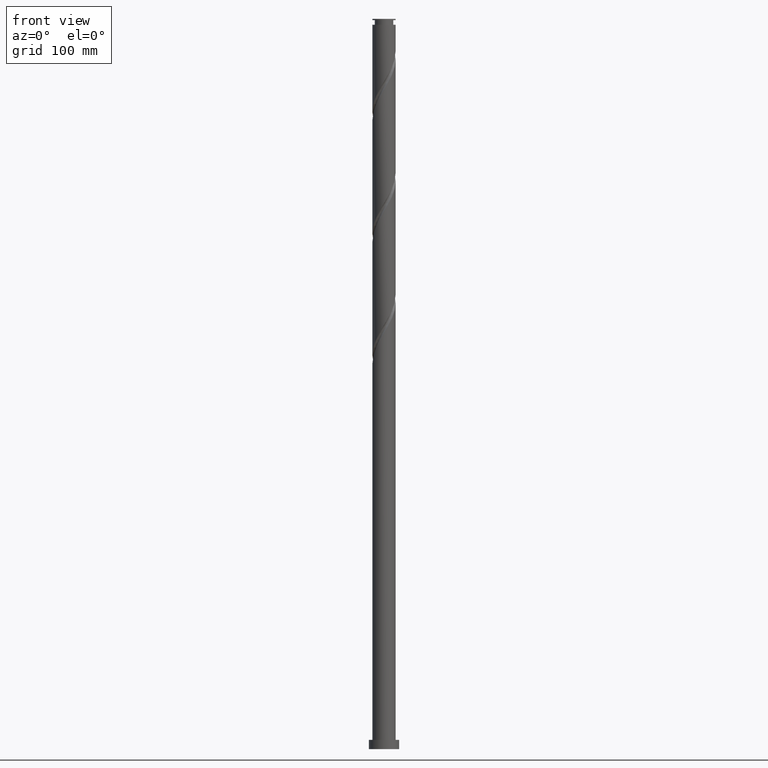
[diagram: clean part render]
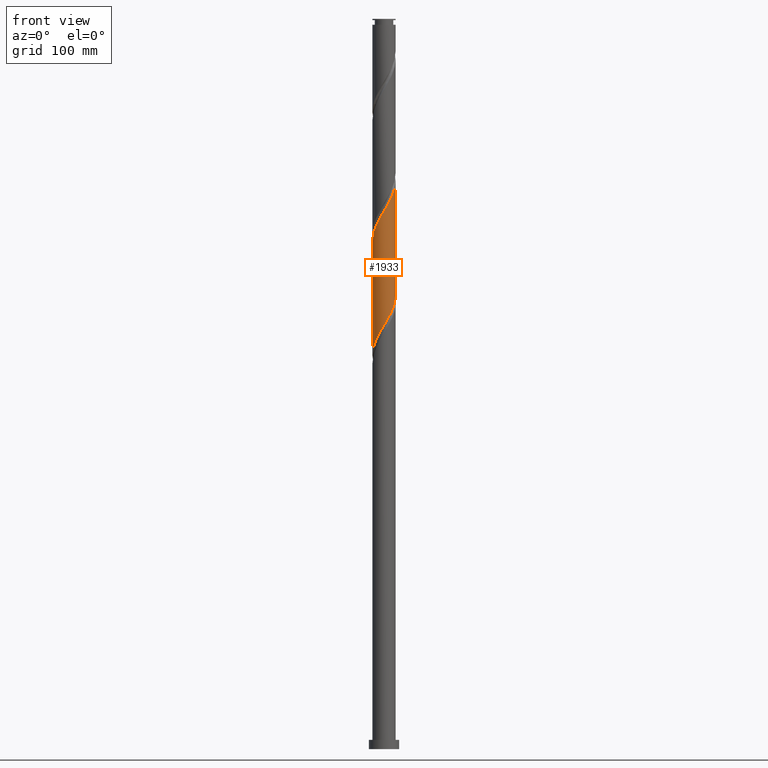
[diagram: same view with one face highlighted and labeled with its STEP entity id]
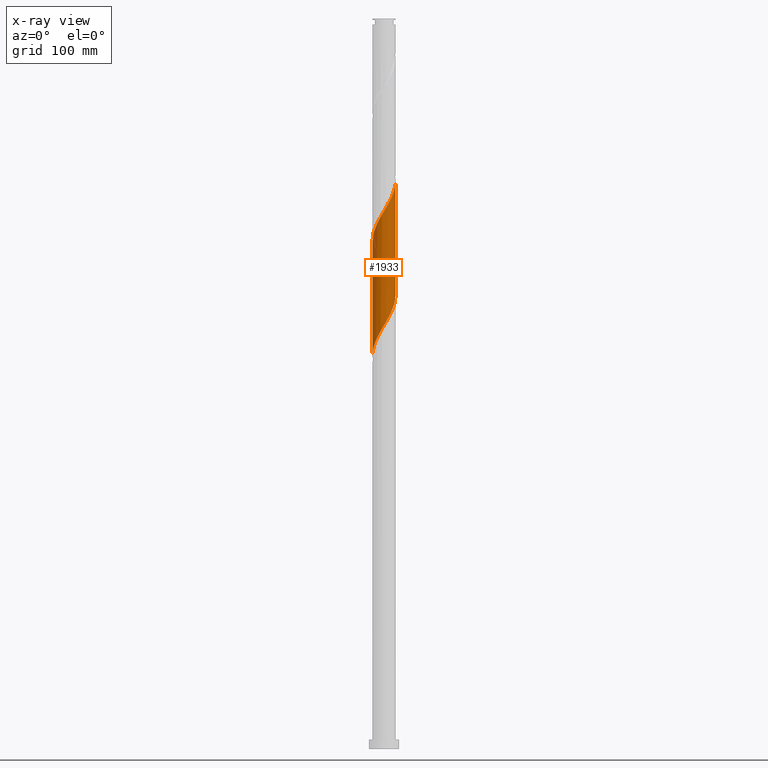
[diagram: x-ray of the same camera — body ghosted, the highlighted face saturated]
A machine part, front view. The second image highlights one B-rep face of the part: STEP entity #1933.
The next image is the same camera in x-ray: the body ghosted, the highlighted face saturated — about 0% of this face is hidden behind the body in this view.
In plain terms, the highlighted cylindrical surface (edge-blend (fillet) strip) has radius 10 mm, axis along (-0, -0, -1).
Its self-contained STEP definition (entity closure, byte-faithful):
#3 = CARTESIAN_POINT ( 'NONE',  ( 9.970473777339156740, -0.7678884394185103712, 489.0346157676426628 ) ) ;
#14 = CARTESIAN_POINT ( 'NONE',  ( 1.989974874213248146, -9.800000000000014921, 467.4169687088191836 ) ) ;
#51 = CARTESIAN_POINT ( 'NONE',  ( 9.659608383748059524, -2.586883428495470927, 485.9463804735250392 ) ) ;
#98 = CARTESIAN_POINT ( 'NONE',  ( 10.00000000000000178, -7.319984282701970376E-15, 392.0151774835132414 ) ) ;
#110 = CARTESIAN_POINT ( 'NONE',  ( -9.659608383748043536, -2.586883428495467374, 343.8875569441133280 ) ) ;
#111 = ORIENTED_EDGE ( 'NONE', *, *, #1830, .F. ) ;
#121 = CARTESIAN_POINT ( 'NONE',  ( 4.336283023954736748, -9.058438312957086680, 373.2257922382310085 ) ) ;
#130 = CARTESIAN_POINT ( 'NONE',  ( 9.841984169373612090, -1.998500123414085561, 388.6669687088191836 ) ) ;
#140 = CARTESIAN_POINT ( 'NONE',  ( 3.467124458470600246, -9.379714707253892669, 371.6816745911720545 ) ) ;
#144 = CARTESIAN_POINT ( 'NONE',  ( -7.885592126811187264, -6.149588344724690181, 448.8875569441132711 ) ) ;
#219 = ORIENTED_EDGE ( 'NONE', *, *, #1276, .F. ) ;
#276 = CARTESIAN_POINT ( 'NONE',  ( -7.525958078366985937, -6.649707522601991272, 351.6081451794073587 ) ) ;
#279 = VECTOR ( 'NONE', #2088, 1000.000000000000000 ) ;
#307 = CARTESIAN_POINT ( 'NONE',  ( 8.455435405720850284, -5.418880625476916180, 382.4904981205837657 ) ) ;
#318 = CARTESIAN_POINT ( 'NONE',  ( 5.131608130647609123, -8.582924792486027243, 374.7699098852897919 ) ) ;
#322 = CARTESIAN_POINT ( 'NONE',  ( -6.621341042621000206, -7.493853667993722212, 451.9757922382308948 ) ) ;
#380 = CARTESIAN_POINT ( 'NONE',  ( 10.00000000000001599, 6.752312032206668672E-15, 490.3187599341250689 ) ) ;
#393 = CARTESIAN_POINT ( 'NONE',  ( 0.000000000000000000, 0.000000000000000000, 630.0000000000000000 ) ) ;
#439 = CARTESIAN_POINT ( 'NONE',  ( 9.574583210674491696, -2.885715914962902140, 387.1228510617603433 ) ) ;
#449 = CARTESIAN_POINT ( 'NONE',  ( -9.419898332860572765, -3.481977962603644450, 345.4316745911721114 ) ) ;
#451 = VERTEX_POINT ( 'NONE', #380 ) ;
#474 = CARTESIAN_POINT ( 'NONE',  ( -2.898078607385138561, -9.615601672225377428, 360.8728510617603433 ) ) ;
#477 = CARTESIAN_POINT ( 'NONE',  ( -8.881308828848125003, -4.595906165994323445, 445.7993216499955906 ) ) ;
#483 = CARTESIAN_POINT ( 'NONE',  ( -5.395764636050379259, -8.419366008931321588, 356.2404981205838226 ) ) ;
#498 = CARTESIAN_POINT ( 'NONE',  ( -1.684572021217823012, -9.857089687394065436, 461.2404981205837657 ) ) ;
#525 = CARTESIAN_POINT ( 'NONE',  ( 4.615595482616599909, -8.919357234371563692, 472.0493216499955338 ) ) ;
#548 = CARTESIAN_POINT ( 'NONE',  ( 8.619694891282842164, -5.153592447475790372, 481.3140275323484616 ) ) ;
#641 = CARTESIAN_POINT ( 'NONE',  ( -9.574583210674504130, -2.885715914962903472, 442.7110863558780238 ) ) ;
#647 = CARTESIAN_POINT ( 'NONE',  ( 1.684572021217821014, -9.857089687394049449, 368.5934392970544877 ) ) ;
#674 = CARTESIAN_POINT ( 'NONE',  ( -3.467124458470604687, -9.379714707253905104, 458.1522628264661421 ) ) ;
#701 = CARTESIAN_POINT ( 'NONE',  ( 10.00000000000001599, 6.752312032206668672E-15, 490.3187599341250120 ) ) ;
#719 = EDGE_LOOP ( 'NONE', ( #219, #111, #1870, #1924 ) ) ;
#740 = CARTESIAN_POINT ( 'NONE',  ( 10.00000000000001599, -0.3845118788768240314, 489.6753541820652913 ) ) ;
#761 = CARTESIAN_POINT ( 'NONE',  ( -10.00000000000000178, 0.000000000000000000, 630.0000000000000000 ) ) ;
#770 = CARTESIAN_POINT ( 'NONE',  ( 10.00000000000000178, -7.319984282701970376E-15, 392.0151774835132414 ) ) ;
#784 = CARTESIAN_POINT ( 'NONE',  ( -1.081871141041355289, -9.984398327774622217, 363.9610863558780238 ) ) ;
#790 = EDGE_CURVE ( 'NONE', #1205, #1393, #1921, .T. ) ;
#796 = CARTESIAN_POINT ( 'NONE',  ( -9.899318434635519637, -1.691788894387293407, 342.3434392970543740 ) ) ;
#807 = CARTESIAN_POINT ( 'NONE',  ( -9.970473777339142529, -0.7678884394185052642, 340.7993216499956475 ) ) ;
#818 = CARTESIAN_POINT ( 'NONE',  ( 7.885592126811174829, -6.149588344724679523, 380.9463804735250960 ) ) ;
#828 = CARTESIAN_POINT ( 'NONE',  ( 0.7711781494491763977, -10.01318827323739669, 367.0493216499955906 ) ) ;
#831 = CARTESIAN_POINT ( 'NONE',  ( -7.315748847901506480, -6.880296063972457077, 450.4316745911719977 ) ) ;
#853 = DIRECTION ( 'NONE',  ( -0.000000000000000000, -0.000000000000000000, -1.000000000000000000 ) ) ;
#957 = CARTESIAN_POINT ( 'NONE',  ( 9.941806644708183427, -1.077256069482188439, 390.2110863558779670 ) ) ;
#979 =( BOUNDED_CURVE ( )  B_SPLINE_CURVE ( 2, ( #1172, #1327, #1847, #1482, #641, #1506, #477, #1669, #144, #831, #322, #1679, #1518, #2183, #674, #1349, #498, #1186, #1413, #1740, #14, #1911, #1221, #525, #1531, #1886, #1360, #1729, #1702, #548, #1567, #1233, #51, #1402, #3, #740, #701 ),
 .UNSPECIFIED., .F., .T. ) 
 B_SPLINE_CURVE_WITH_KNOTS ( ( 3, 2, 2, 2, 2, 2, 2, 2, 2, 2, 2, 2, 2, 2, 2, 2, 2, 2, 3 ),
 ( 0.3045293573162903278, 0.3088235294117647189, 0.3161764705882352811, 0.3235294117647058432, 0.3308823529411765163, 0.3382352941176470784, 0.3455882352941176405, 0.3529411764705882026, 0.3602941176470588758, 0.3676470588235294379, 0.3750000000000000000, 0.3823529411764705621, 0.3897058823529411242, 0.3970588235294117974, 0.4044117647058823595, 0.4117647058823529216, 0.4191176470588234837, 0.4264705882352941568, 0.4295293573162904943 ),
 .UNSPECIFIED. ) 
 CURVE ( )  GEOMETRIC_REPRESENTATION_ITEM ( )  RATIONAL_B_SPLINE_CURVE ( ( 0.9072066346053018204, 0.9068261157890689095, 0.9090909090909401469, 0.9052128875409715114, 0.9090909090909401469, 0.9052128875409715114, 0.9090909090909401469, 0.9052128875409715114, 0.9090909090909401469, 0.9052128875409715114, 0.9090909090909401469, 0.9052128875409715114, 0.9090909090909401469, 0.9052128875409715114, 0.9090909090909401469, 0.9052128875409715114, 0.9090909090909401469, 0.9052128875409715114, 0.9090909090909401469, 0.9052128875409715114, 0.9090909090909401469, 0.9052128875409715114, 0.9090909090909401469, 0.9052128875409715114, 0.9090909090909401469, 0.9052128875409715114, 0.9090909090909401469, 0.9052128875409715114, 0.9090909090909401469, 0.9052128875409715114, 0.9090909090909401469, 0.9052128875409715114, 0.9090909090909401469, 0.9052128875409715114, 0.9090909090909401469, 0.9074776808428426378, 0.9072066346053018204 ) ) 
 REPRESENTATION_ITEM ( '' )  );
#989 = CARTESIAN_POINT ( 'NONE',  ( 5.926933237340483274, -8.107411272014974912, 376.3140275323486321 ) ) ;
#997 = CARTESIAN_POINT ( 'NONE',  ( -10.00000000000000178, -2.094411829458808635E-14, 339.5151774835132983 ) ) ;
#1045 = EDGE_CURVE ( 'NONE', #2069, #1393, #1882, .T. ) ;
#1051 = DIRECTION ( 'NONE',  ( -1.000000000000000000, 0.000000000000000000, 0.000000000000000000 ) ) ;
#1063 = CYLINDRICAL_SURFACE ( 'NONE', #1073, 10.00000000000000178 ) ;
#1073 = AXIS2_PLACEMENT_3D ( 'NONE', #393, #853, #1051 ) ;
#1138 = CARTESIAN_POINT ( 'NONE',  ( -8.619694891282831506, -5.153592447475782379, 348.5199098852897350 ) ) ;
#1172 = CARTESIAN_POINT ( 'NONE',  ( -10.00000000000001599, 2.201970782184210638E-14, 437.8187599341251257 ) ) ;
#1186 = CARTESIAN_POINT ( 'NONE',  ( -0.7711781494491813937, -10.01318827323741267, 462.7846157676427197 ) ) ;
#1205 = VERTEX_POINT ( 'NONE', #770 ) ;
#1221 = CARTESIAN_POINT ( 'NONE',  ( 3.756837045000868791, -9.267479453298477665, 470.5052040029367504 ) ) ;
#1233 = CARTESIAN_POINT ( 'NONE',  ( 9.419898332860585199, -3.481977962603651555, 484.4022628264661421 ) ) ;
#1276 = EDGE_CURVE ( 'NONE', #451, #1205, #2167, .T. ) ;
#1291 = CARTESIAN_POINT ( 'NONE',  ( 9.999999999999998224, -0.5401998367926631461, 391.1112582515004874 ) ) ;
#1299 = CARTESIAN_POINT ( 'NONE',  ( 6.621341042620987771, -7.493853667993711554, 377.8581451794073587 ) ) ;
#1327 = CARTESIAN_POINT ( 'NONE',  ( -10.00000000000001599, -0.5401998367926265088, 438.7226791661377092 ) ) ;
#1349 = CARTESIAN_POINT ( 'NONE',  ( -2.597965892986468184, -9.700991101550712870, 459.6963804735249255 ) ) ;
#1360 = CARTESIAN_POINT ( 'NONE',  ( 6.850945933925582487, -7.284541153046554030, 476.6816745911722251 ) ) ;
#1393 = VERTEX_POINT ( 'NONE', #997 ) ;
#1402 = CARTESIAN_POINT ( 'NONE',  ( 9.899318434635530295, -1.691788894387298070, 487.4904981205838226 ) ) ;
#1413 = CARTESIAN_POINT ( 'NONE',  ( 0.1553464957960880299, -9.998793300506024551, 464.3287334147015599 ) ) ;
#1454 = CARTESIAN_POINT ( 'NONE',  ( -6.175933789484160386, -7.919374783491094583, 354.6963804735250960 ) ) ;
#1466 = CARTESIAN_POINT ( 'NONE',  ( -10.00000000000000000, -0.3845118788768502882, 340.1585832355730190 ) ) ;
#1482 = CARTESIAN_POINT ( 'NONE',  ( -9.841984169373624525, -1.998500123414084673, 441.1669687088191836 ) ) ;
#1489 = CARTESIAN_POINT ( 'NONE',  ( 10.00000000000000178, 1.224646799147353454E-15, 630.0000000000000000 ) ) ;
#1503 = CARTESIAN_POINT ( 'NONE',  ( -3.756837045000868791, -9.267479453298463454, 359.3287334147016168 ) ) ;
#1506 = CARTESIAN_POINT ( 'NONE',  ( -9.307182251975389065, -3.772931706511726269, 444.2552040029366935 ) ) ;
#1518 = CARTESIAN_POINT ( 'NONE',  ( -5.131608130647619781, -8.582924792486039678, 455.0640275323486890 ) ) ;
#1531 = CARTESIAN_POINT ( 'NONE',  ( 5.395764636050384588, -8.419366008931334022, 473.5934392970544877 ) ) ;
#1567 = CARTESIAN_POINT ( 'NONE',  ( 9.019796612071711905, -4.317785205039720964, 482.8581451794074155 ) ) ;
#1624 = CARTESIAN_POINT ( 'NONE',  ( -0.1553464957960916382, -9.998793300506012116, 365.5052040029369209 ) ) ;
#1634 = CARTESIAN_POINT ( 'NONE',  ( -9.019796612071706576, -4.317785205039711194, 346.9757922382309516 ) ) ;
#1664 = CARTESIAN_POINT ( 'NONE',  ( 2.597965892986459302, -9.700991101550700435, 370.1375569441133280 ) ) ;
#1669 = CARTESIAN_POINT ( 'NONE',  ( -8.455435405720860942, -5.418880625476918844, 447.3434392970544309 ) ) ;
#1679 = CARTESIAN_POINT ( 'NONE',  ( -5.926933237340491267, -8.107411272014985570, 453.5199098852896782 ) ) ;
#1702 = CARTESIAN_POINT ( 'NONE',  ( 8.072826484824918936, -5.901649985038897483, 479.7699098852896782 ) ) ;
#1729 = CARTESIAN_POINT ( 'NONE',  ( 7.525958078366993931, -6.649707522602001930, 478.2257922382308379 ) ) ;
#1740 = CARTESIAN_POINT ( 'NONE',  ( 1.081871141041357509, -9.984398327774636428, 465.8728510617602865 ) ) ;
#1799 = CARTESIAN_POINT ( 'NONE',  ( -6.850945933925570941, -7.284541153046544260, 353.1522628264662558 ) ) ;
#1810 = CARTESIAN_POINT ( 'NONE',  ( 8.881308828848109016, -4.595906165994319892, 384.0346157676427765 ) ) ;
#1830 = EDGE_CURVE ( 'NONE', #2069, #451, #979, .T. ) ;
#1847 = CARTESIAN_POINT ( 'NONE',  ( -9.941806644708199414, -1.077256069482183332, 439.6228510617602865 ) ) ;
#1870 = ORIENTED_EDGE ( 'NONE', *, *, #1045, .T. ) ;
#1882 = LINE ( 'NONE', #761, #279 ) ;
#1886 = CARTESIAN_POINT ( 'NONE',  ( 6.175933789484166603, -7.919374783491107017, 475.1375569441131574 ) ) ;
#1911 = CARTESIAN_POINT ( 'NONE',  ( 2.898078607385141670, -9.615601672225386309, 468.9610863558779670 ) ) ;
#1921 =( BOUNDED_CURVE ( )  B_SPLINE_CURVE ( 2, ( #98, #1291, #957, #130, #439, #1964, #1810, #307, #818, #2156, #1299, #989, #318, #121, #140, #1664, #647, #828, #1624, #784, #1992, #474, #1503, #2004, #483, #1454, #1799, #276, #1981, #1138, #1634, #449, #110, #796, #807, #1466, #1972 ),
 .UNSPECIFIED., .F., .T. ) 
 B_SPLINE_CURVE_WITH_KNOTS ( ( 3, 2, 2, 2, 2, 2, 2, 2, 2, 2, 2, 2, 2, 2, 2, 2, 2, 2, 3 ),
 ( 0.8045293573162906053, 0.8088235294117647189, 0.8161764705882352811, 0.8235294117647058432, 0.8308823529411765163, 0.8382352941176470784, 0.8455882352941176405, 0.8529411764705882026, 0.8602941176470588758, 0.8676470588235294379, 0.8750000000000000000, 0.8823529411764705621, 0.8897058823529411242, 0.8970588235294117974, 0.9044117647058823595, 0.9117647058823529216, 0.9191176470588234837, 0.9264705882352941568, 0.9295293573162902723 ),
 .UNSPECIFIED. ) 
 CURVE ( )  GEOMETRIC_REPRESENTATION_ITEM ( )  RATIONAL_B_SPLINE_CURVE ( ( 0.9072066346052954922, 0.9068261157890626922, 0.9090909090909340406, 0.9052128875409651831, 0.9090909090909340406, 0.9052128875409651831, 0.9090909090909340406, 0.9052128875409651831, 0.9090909090909340406, 0.9052128875409651831, 0.9090909090909340406, 0.9052128875409651831, 0.9090909090909340406, 0.9052128875409651831, 0.9090909090909340406, 0.9052128875409651831, 0.9090909090909340406, 0.9052128875409651831, 0.9090909090909340406, 0.9052128875409651831, 0.9090909090909340406, 0.9052128875409651831, 0.9090909090909340406, 0.9052128875409651831, 0.9090909090909340406, 0.9052128875409651831, 0.9090909090909340406, 0.9052128875409651831, 0.9090909090909340406, 0.9052128875409651831, 0.9090909090909340406, 0.9052128875409651831, 0.9090909090909340406, 0.9052128875409651831, 0.9090909090909340406, 0.9074776808428364205, 0.9072066346052956032 ) ) 
 REPRESENTATION_ITEM ( '' )  );
#1924 = ORIENTED_EDGE ( 'NONE', *, *, #790, .F. ) ;
#1933 = ADVANCED_FACE ( 'NONE', ( #2036 ), #1063, .T. ) ;
#1947 = CARTESIAN_POINT ( 'NONE',  ( -10.00000000000001599, 2.201970782184210323E-14, 437.8187599341251257 ) ) ;
#1964 = CARTESIAN_POINT ( 'NONE',  ( 9.307182251975374854, -3.772931706511718719, 385.5787334147014462 ) ) ;
#1972 = CARTESIAN_POINT ( 'NONE',  ( -10.00000000000000178, -2.094411829458808635E-14, 339.5151774835132983 ) ) ;
#1980 = DIRECTION ( 'NONE',  ( -0.000000000000000000, -0.000000000000000000, -1.000000000000000000 ) ) ;
#1981 = CARTESIAN_POINT ( 'NONE',  ( -8.072826484824911830, -5.901649985038884161, 350.0640275323486321 ) ) ;
#1992 = CARTESIAN_POINT ( 'NONE',  ( -1.989974874213249034, -9.799999999999998934, 362.4169687088191836 ) ) ;
#2004 = CARTESIAN_POINT ( 'NONE',  ( -4.615595482616598133, -8.919357234371549481, 357.7846157676427765 ) ) ;
#2036 = FACE_OUTER_BOUND ( 'NONE', #719, .T. ) ;
#2069 = VERTEX_POINT ( 'NONE', #1947 ) ;
#2088 = DIRECTION ( 'NONE',  ( -0.000000000000000000, -0.000000000000000000, -1.000000000000000000 ) ) ;
#2120 = VECTOR ( 'NONE', #1980, 1000.000000000000000 ) ;
#2156 = CARTESIAN_POINT ( 'NONE',  ( 7.315748847901493157, -6.880296063972449971, 379.4022628264662558 ) ) ;
#2167 = LINE ( 'NONE', #1489, #2120 ) ;
#2183 = CARTESIAN_POINT ( 'NONE',  ( -4.336283023954743854, -9.058438312957092009, 456.6081451794073587 ) ) ;